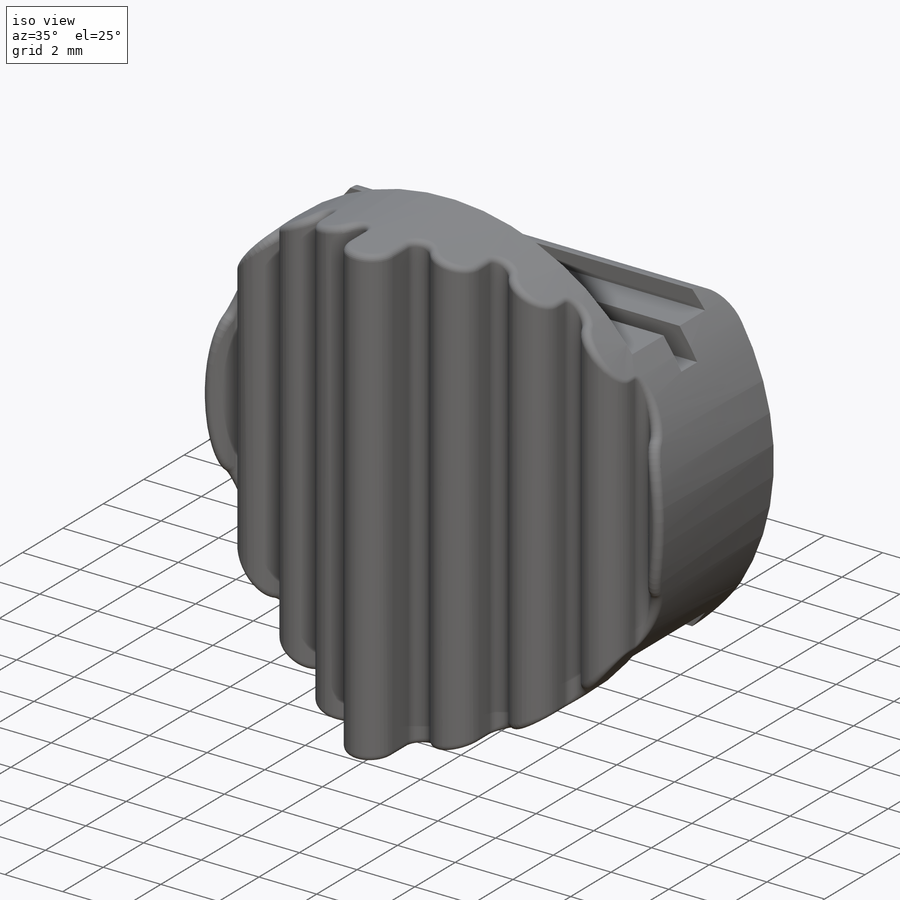
[diagram: iso view]
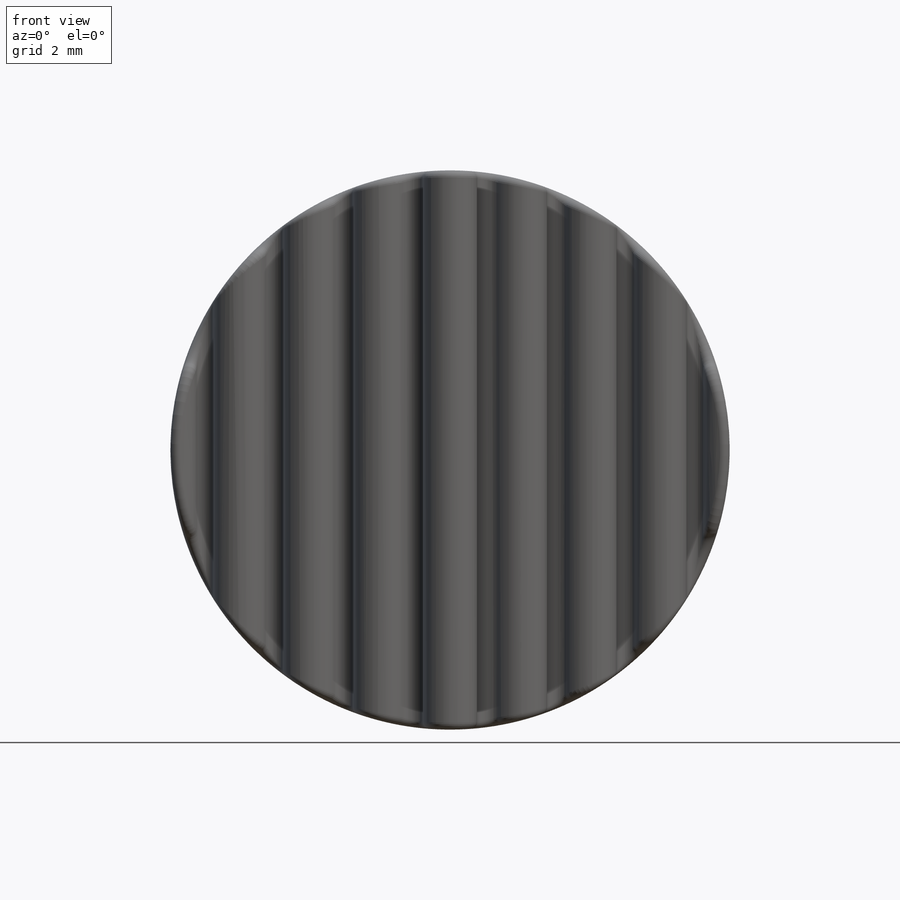
[diagram: front view]
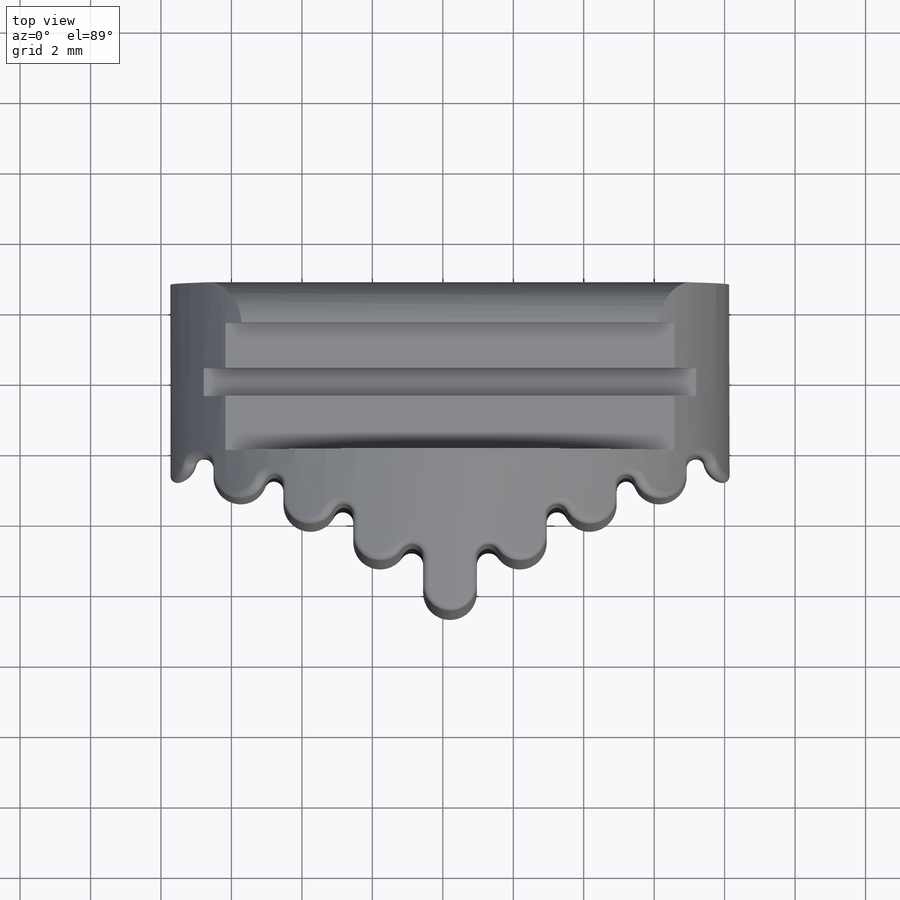
[diagram: top view]
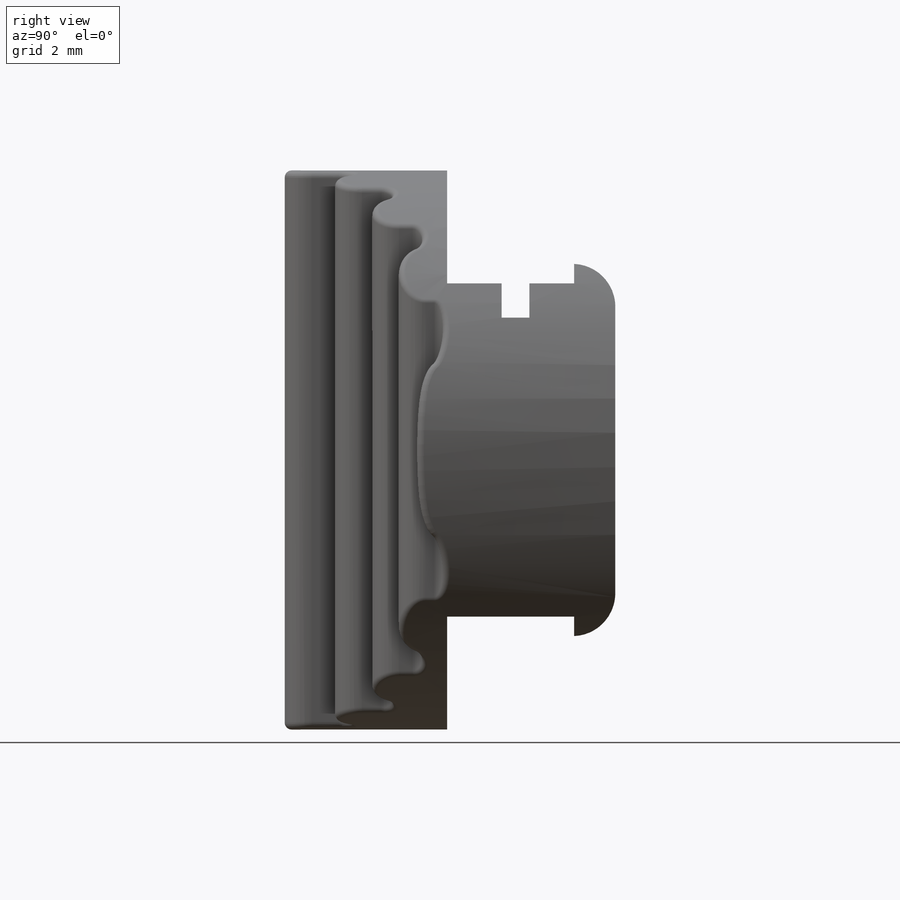
[diagram: right view]
SOLIDWORKS PART (.sldprt)
format: sldprt  version: not decoded by parser v0  size: 776,704 bytes
history: native  units: mm
features: sketch x7, plane x3, cut_extrude x2, material x1, extrude x1, fillet x1 + 1 further entry (+21 scaffold rows collapsed; 3 parser-record rows omitted)
feature tree (40):
  scaffold x21  (default folders/planes/origin — collapsed)
  material  "Material <not specified>"
  plane  "Front Plane-BasicSliderCap"
  plane  "Top Plane-BasicSliderCap"
  plane  "Right Plane-BasicSliderCap"
  sketch  "Sketch1-BasicSliderCap"  dims[D1=15.875mm]
  sketch  "Sketch3-BasicSliderCap"  dims[D1=0.0508mm]
  "BasicSliderCap"
  parser-record x3  (decoder bookkeeping rows leaked as tree rows — omitted from the tree; the rows remain in map.json)
  sketch  "Sketch3"  dims[D1=4.4831mm]
  sketch  "Sketch4"
  cut_extrude  "Extrude1"  [1 undecoded]
  sketch  "Sketch5"  dims[c1.D10=33.0mm c1.D1=0.762mm c1.D2=0.762mm c1.D3=0.762mm c1.D4=0.762mm c2.D2=0.762mm c2.D5=0.762mm c2.D6=0.762mm c2.D7=0.762mm c2.D8=0.762mm c2.D9=0.762mm]
  sketch  "Sketch6"  dims[D1=0.127mm]
  extrude  "Extrude4"  Depth=8.89mm
  sketch  "Sketch7"
  cut_extrude  "Extrude5"  [1 undecoded]
  fillet  "Fillet1"  Radius=0.198437mm
decode coverage: 7 of 11 modeling features carry decoded parameters; 1 rows unclassified (native names shown)
note: 2 parameter values undecoded
note: suppression state not decoded; provenance and decode notes live in map.json
